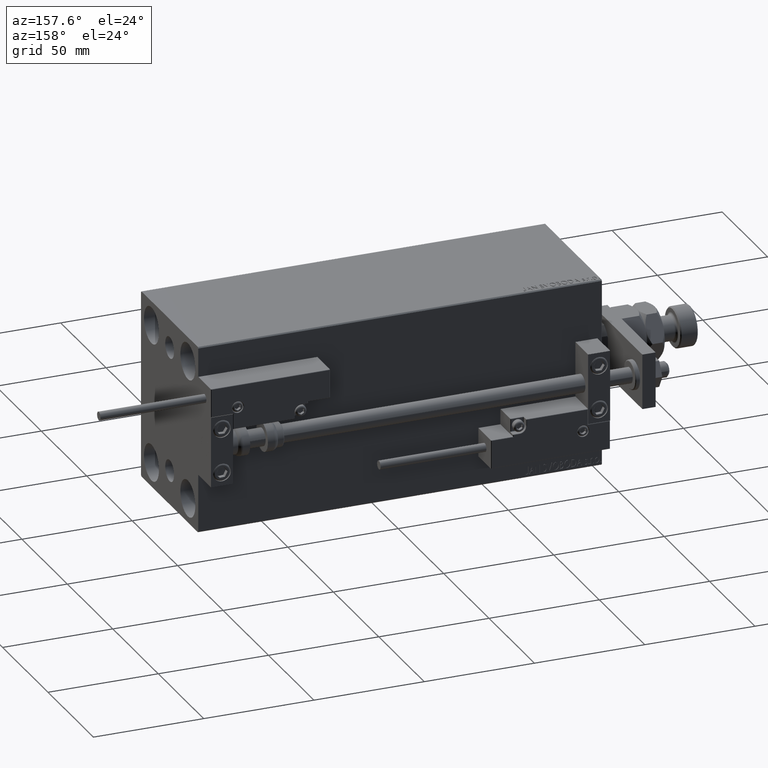
[diagram: clean part render]
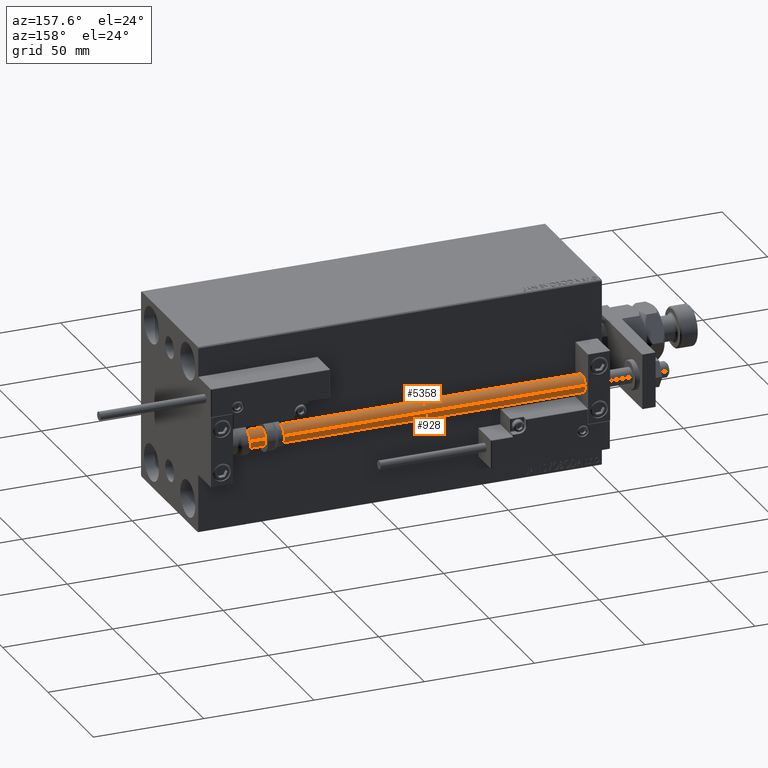
[diagram: same view with one multi-face feature highlighted, each face labeled with its STEP entity id]
A machine part, auxiliary view. The highlighted faces form ONE feature: a constant-radius fillet chain: 2 tangent blend faces with common blend radius 4 mm. The faces share edges in the B-rep.
Their STEP definitions:
[1] entity #928 (Cylinder):
#314 = DIRECTION ( 'NONE',  ( -0.000000000000000000, -0.000000000000000000, -1.000000000000000000 ) ) ;
#928 = ADVANCED_FACE ( 'NONE', ( #7708 ), #51394, .T. ) ;
#1299 = CIRCLE ( 'NONE', #34884, 4.000000000000000000 ) ;
#1410 = VERTEX_POINT ( 'NONE', #49206 ) ;
#2860 = EDGE_CURVE ( 'NONE', #1410, #37920, #1299, .T. ) ;
#3164 = LINE ( 'NONE', #46336, #6205 ) ;
#3711 = LINE ( 'NONE', #47401, #20588 ) ;
#4644 = EDGE_CURVE ( 'NONE', #1410, #5117, #3711, .T. ) ;
#4887 = EDGE_LOOP ( 'NONE', ( #10725, #10148, #22597, #11849 ) ) ;
#5117 = VERTEX_POINT ( 'NONE', #38920 ) ;
#5539 = CARTESIAN_POINT ( 'NONE',  ( 4.000000000000000000, 4.898587196589412829E-16, 183.0000000000000000 ) ) ;
#6205 = VECTOR ( 'NONE', #46865, 1000.000000000000000 ) ;
#7708 = FACE_OUTER_BOUND ( 'NONE', #4887, .T. ) ;
#10148 = ORIENTED_EDGE ( 'NONE', *, *, #2860, .F. ) ;
#10725 = ORIENTED_EDGE ( 'NONE', *, *, #14867, .F. ) ;
#11849 = ORIENTED_EDGE ( 'NONE', *, *, #44174, .T. ) ;
#14867 = EDGE_CURVE ( 'NONE', #37920, #20597, #3164, .T. ) ;
#14885 = DIRECTION ( 'NONE',  ( 1.000000000000000000, 0.000000000000000000, 0.000000000000000000 ) ) ;
#15670 = CARTESIAN_POINT ( 'NONE',  ( 0.000000000000000000, 0.000000000000000000, 183.0000000000000000 ) ) ;
#17839 = DIRECTION ( 'NONE',  ( -0.000000000000000000, -0.000000000000000000, 1.000000000000000000 ) ) ;
#19488 = DIRECTION ( 'NONE',  ( -1.000000000000000000, 0.000000000000000000, 0.000000000000000000 ) ) ;
#20588 = VECTOR ( 'NONE', #314, 1000.000000000000000 ) ;
#20597 = VERTEX_POINT ( 'NONE', #41992 ) ;
#22597 = ORIENTED_EDGE ( 'NONE', *, *, #4644, .T. ) ;
#27279 = AXIS2_PLACEMENT_3D ( 'NONE', #31534, #38327, #19488 ) ;
#29206 = CIRCLE ( 'NONE', #51754, 4.000000000000000000 ) ;
#29628 = CARTESIAN_POINT ( 'NONE',  ( 0.000000000000000000, 0.000000000000000000, 2.000000000000029310 ) ) ;
#31534 = CARTESIAN_POINT ( 'NONE',  ( 0.000000000000000000, 0.000000000000000000, 183.0000000000000000 ) ) ;
#33824 = DIRECTION ( 'NONE',  ( 1.000000000000000000, 0.000000000000000000, 0.000000000000000000 ) ) ;
#34884 = AXIS2_PLACEMENT_3D ( 'NONE', #15670, #50720, #14885 ) ;
#37920 = VERTEX_POINT ( 'NONE', #5539 ) ;
#38327 = DIRECTION ( 'NONE',  ( -0.000000000000000000, -0.000000000000000000, -1.000000000000000000 ) ) ;
#38920 = CARTESIAN_POINT ( 'NONE',  ( -4.000000000000000000, 0.000000000000000000, 2.000000000000029310 ) ) ;
#41992 = CARTESIAN_POINT ( 'NONE',  ( 4.000000000000000000, 4.898587196589412829E-16, 2.000000000000029310 ) ) ;
#44174 = EDGE_CURVE ( 'NONE', #5117, #20597, #29206, .T. ) ;
#46336 = CARTESIAN_POINT ( 'NONE',  ( 4.000000000000000000, 4.898587196589412829E-16, 183.0000000000000000 ) ) ;
#46865 = DIRECTION ( 'NONE',  ( -0.000000000000000000, -0.000000000000000000, -1.000000000000000000 ) ) ;
#47401 = CARTESIAN_POINT ( 'NONE',  ( -4.000000000000000000, 0.000000000000000000, 183.0000000000000000 ) ) ;
#49206 = CARTESIAN_POINT ( 'NONE',  ( -4.000000000000000000, 0.000000000000000000, 183.0000000000000000 ) ) ;
#50720 = DIRECTION ( 'NONE',  ( 0.000000000000000000, 0.000000000000000000, 1.000000000000000000 ) ) ;
#51394 = CYLINDRICAL_SURFACE ( 'NONE', #27279, 4.000000000000000000 ) ;
#51754 = AXIS2_PLACEMENT_3D ( 'NONE', #29628, #17839, #33824 ) ;
[2] entity #5358 (Cylinder):
#314 = DIRECTION ( 'NONE',  ( -0.000000000000000000, -0.000000000000000000, -1.000000000000000000 ) ) ;
#1354 = DIRECTION ( 'NONE',  ( -0.000000000000000000, -0.000000000000000000, 1.000000000000000000 ) ) ;
#1410 = VERTEX_POINT ( 'NONE', #49206 ) ;
#2105 = DIRECTION ( 'NONE',  ( 1.000000000000000000, 0.000000000000000000, 0.000000000000000000 ) ) ;
#2955 = AXIS2_PLACEMENT_3D ( 'NONE', #13507, #12993, #17446 ) ;
#3164 = LINE ( 'NONE', #46336, #6205 ) ;
#3711 = LINE ( 'NONE', #47401, #20588 ) ;
#3753 = CYLINDRICAL_SURFACE ( 'NONE', #45669, 4.000000000000000000 ) ;
#4644 = EDGE_CURVE ( 'NONE', #1410, #5117, #3711, .T. ) ;
#5117 = VERTEX_POINT ( 'NONE', #38920 ) ;
#5358 = ADVANCED_FACE ( 'NONE', ( #39617 ), #3753, .T. ) ;
#5539 = CARTESIAN_POINT ( 'NONE',  ( 4.000000000000000000, 4.898587196589412829E-16, 183.0000000000000000 ) ) ;
#5795 = CIRCLE ( 'NONE', #19186, 4.000000000000000000 ) ;
#5904 = ORIENTED_EDGE ( 'NONE', *, *, #49473, .T. ) ;
#6205 = VECTOR ( 'NONE', #46865, 1000.000000000000000 ) ;
#11183 = ORIENTED_EDGE ( 'NONE', *, *, #14867, .T. ) ;
#11352 = DIRECTION ( 'NONE',  ( -1.000000000000000000, 0.000000000000000000, 0.000000000000000000 ) ) ;
#12993 = DIRECTION ( 'NONE',  ( 0.000000000000000000, 0.000000000000000000, 1.000000000000000000 ) ) ;
#13507 = CARTESIAN_POINT ( 'NONE',  ( 0.000000000000000000, 0.000000000000000000, 183.0000000000000000 ) ) ;
#14867 = EDGE_CURVE ( 'NONE', #37920, #20597, #3164, .T. ) ;
#17446 = DIRECTION ( 'NONE',  ( 1.000000000000000000, 0.000000000000000000, 0.000000000000000000 ) ) ;
#18474 = EDGE_CURVE ( 'NONE', #37920, #1410, #43908, .T. ) ;
#19186 = AXIS2_PLACEMENT_3D ( 'NONE', #21247, #1354, #2105 ) ;
#20588 = VECTOR ( 'NONE', #314, 1000.000000000000000 ) ;
#20597 = VERTEX_POINT ( 'NONE', #41992 ) ;
#21247 = CARTESIAN_POINT ( 'NONE',  ( 0.000000000000000000, 0.000000000000000000, 2.000000000000029310 ) ) ;
#26051 = ORIENTED_EDGE ( 'NONE', *, *, #4644, .F. ) ;
#26214 = EDGE_LOOP ( 'NONE', ( #38440, #11183, #5904, #26051 ) ) ;
#35454 = CARTESIAN_POINT ( 'NONE',  ( 0.000000000000000000, 0.000000000000000000, 183.0000000000000000 ) ) ;
#37920 = VERTEX_POINT ( 'NONE', #5539 ) ;
#38440 = ORIENTED_EDGE ( 'NONE', *, *, #18474, .F. ) ;
#38920 = CARTESIAN_POINT ( 'NONE',  ( -4.000000000000000000, 0.000000000000000000, 2.000000000000029310 ) ) ;
#39617 = FACE_OUTER_BOUND ( 'NONE', #26214, .T. ) ;
#41992 = CARTESIAN_POINT ( 'NONE',  ( 4.000000000000000000, 4.898587196589412829E-16, 2.000000000000029310 ) ) ;
#43908 = CIRCLE ( 'NONE', #2955, 4.000000000000000000 ) ;
#44054 = DIRECTION ( 'NONE',  ( -0.000000000000000000, -0.000000000000000000, -1.000000000000000000 ) ) ;
#45669 = AXIS2_PLACEMENT_3D ( 'NONE', #35454, #44054, #11352 ) ;
#46336 = CARTESIAN_POINT ( 'NONE',  ( 4.000000000000000000, 4.898587196589412829E-16, 183.0000000000000000 ) ) ;
#46865 = DIRECTION ( 'NONE',  ( -0.000000000000000000, -0.000000000000000000, -1.000000000000000000 ) ) ;
#47401 = CARTESIAN_POINT ( 'NONE',  ( -4.000000000000000000, 0.000000000000000000, 183.0000000000000000 ) ) ;
#49206 = CARTESIAN_POINT ( 'NONE',  ( -4.000000000000000000, 0.000000000000000000, 183.0000000000000000 ) ) ;
#49473 = EDGE_CURVE ( 'NONE', #20597, #5117, #5795, .T. ) ;